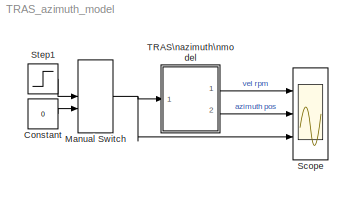
MODEL TRAS_azimuth_model
KIND model
CONFIG PreLoadFcn = load tras_char
BLOCK [Constant] Constant
  SID = 1
  Value = 0
BLOCK [ManualSwitch] Manual Switch
  SID = 2
BLOCK [Scope] Scope
  DataFormat = StructureWithTime
  Floating = off
  NumInputPorts = 3
  Ports = [3]
  SID = 3
  SampleTime = 0
  ShowLegends = off
  YMax = 5~5~5
  YMin = -5~-5~-5
BLOCK [Step] Step1
  After = .2
  SID = 4
  SampleTime = 0
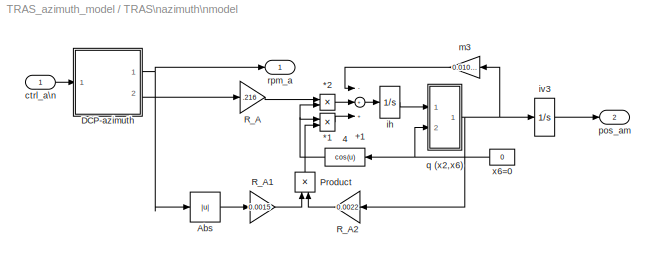
BLOCK [SubSystem] TRAS\nazimuth\nmodel
  FunctionWithSeparateData = off
  MaskHideContents = off
  MinAlgLoopOccurrences = off
  Opaque = off
  Ports = [1, 2]
  PropExecContextOutsideSubsystem = off
  RTWSystemCode = Auto
  RequestExecContextInheritance = off
  SID = 5
BLOCK [Product] TRAS\nazimuth\nmodel/*1
  Ports = [2, 1]
  RndMeth = Floor
  SID = 7
BLOCK [Product] TRAS\nazimuth\nmodel/*2
  Ports = [2, 1]
  RndMeth = Floor
  SID = 8
BLOCK [Sum] TRAS\nazimuth\nmodel/+1
  Inputs = -++
  Ports = [3, 1]
  SID = 9
BLOCK [Fcn] TRAS\nazimuth\nmodel/4
  Expr = cos(u)
  SID = 10
BLOCK [Abs] TRAS\nazimuth\nmodel/Abs
  SID = 11
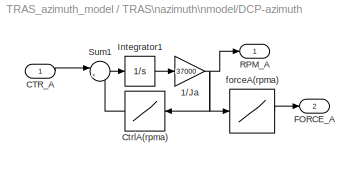
BLOCK [SubSystem] TRAS\nazimuth\nmodel/DCP-azimuth
  FunctionWithSeparateData = off
  MaskHideContents = off
  MinAlgLoopOccurrences = off
  Opaque = off
  Ports = [1, 2]
  PropExecContextOutsideSubsystem = off
  RTWSystemCode = Auto
  RequestExecContextInheritance = off
  SID = 12
BLOCK [Gain] TRAS\nazimuth\nmodel/DCP-azimuth/1//Ja
  Gain = 37000
  SID = 14
BLOCK [Inport] TRAS\nazimuth\nmodel/DCP-azimuth/CTR_A
  IconDisplay = Port number
  SID = 13
BLOCK [Lookup] TRAS\nazimuth\nmodel/DCP-azimuth/CtrlA(rpma)
  InputValues = rpm_a
  SID = 15
  Table = control_a
BLOCK [Outport] TRAS\nazimuth\nmodel/DCP-azimuth/FORCE_A
  IconDisplay = Port number
  Port = 2
  SID = 20
BLOCK [Integrator] TRAS\nazimuth\nmodel/DCP-azimuth/Integrator1
  Ports = [1, 1]
  SID = 16
BLOCK [Outport] TRAS\nazimuth\nmodel/DCP-azimuth/RPM_A
  IconDisplay = Port number
  SID = 19
BLOCK [Sum] TRAS\nazimuth\nmodel/DCP-azimuth/Sum1
  IconShape = round
  Inputs = |+-
  Ports = [2, 1]
  SID = 17
BLOCK [Lookup] TRAS\nazimuth\nmodel/DCP-azimuth/forceA(rpma)
  InputValues = rpm_a
  SID = 18
  Table = force_a
BLOCK [Product] TRAS\nazimuth\nmodel/Product
  Ports = [2, 1]
  RndMeth = Floor
  SID = 21
BLOCK [Gain] TRAS\nazimuth\nmodel/R_A
  Gain = .216
  SID = 22
  SaturateOnIntegerOverflow = off
BLOCK [Gain] TRAS\nazimuth\nmodel/R_A1
  Gain = 0.0015
  SID = 23
  SaturateOnIntegerOverflow = off
BLOCK [Gain] TRAS\nazimuth\nmodel/R_A2
  Gain = 0.0022
  SID = 24
  SaturateOnIntegerOverflow = off
BLOCK [Inport] TRAS\nazimuth\nmodel/ctrl_a\n
  IconDisplay = Port number
  SID = 6
BLOCK [Integrator] TRAS\nazimuth\nmodel/ih
  Ports = [1, 1]
  SID = 25
BLOCK [Integrator] TRAS\nazimuth\nmodel/iv3
  Ports = [1, 1]
  SID = 26
BLOCK [Gain] TRAS\nazimuth\nmodel/m3
  Gain = 0.0108*0.4935*1.1051
  SID = 27
  SaturateOnIntegerOverflow = off
BLOCK [Outport] TRAS\nazimuth\nmodel/pos_am
  IconDisplay = Port number
  Port = 2
  SID = 36
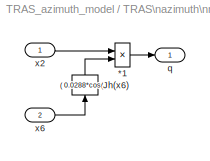
BLOCK [SubSystem] TRAS\nazimuth\nmodel/q (x2,x6)
  FunctionWithSeparateData = off
  MaskHideContents = off
  MinAlgLoopOccurrences = off
  Opaque = off
  Ports = [2, 1]
  PropExecContextOutsideSubsystem = off
  RTWSystemCode = Auto
  RequestExecContextInheritance = off
  SID = 28
BLOCK [Fcn] TRAS\nazimuth\nmodel/q (x2,x6)/ Jh(x6)
  Expr = ( 0.0288*cos(u)^2*0.8696)*1.0713  +0
  SID = 31
BLOCK [Product] TRAS\nazimuth\nmodel/q (x2,x6)/*1
  Inputs = */
  Ports = [2, 1]
  RndMeth = Floor
  SID = 32
BLOCK [Outport] TRAS\nazimuth\nmodel/q (x2,x6)/q
  IconDisplay = Port number
  SID = 33
BLOCK [Inport] TRAS\nazimuth\nmodel/q (x2,x6)/x2
  IconDisplay = Port number
  SID = 29
BLOCK [Inport] TRAS\nazimuth\nmodel/q (x2,x6)/x6
  IconDisplay = Port number
  Port = 2
  SID = 30
BLOCK [Outport] TRAS\nazimuth\nmodel/rpm_a
  IconDisplay = Port number
  SID = 35
BLOCK [Constant] TRAS\nazimuth\nmodel/x6=0
  SID = 34
  Value = 0
LINE Constant:1 -> Manual Switch:2
NET Manual Switch:1 -> Scope:3, TRAS\nazimuth\nmodel:1
LINE Step1:1 -> Manual Switch:1
LINE TRAS\nazimuth\nmodel/*1:1 -> TRAS\nazimuth\nmodel/+1:3
LINE TRAS\nazimuth\nmodel/*2:1 -> TRAS\nazimuth\nmodel/+1:2
LINE TRAS\nazimuth\nmodel/+1:1 -> TRAS\nazimuth\nmodel/ih:1
NET TRAS\nazimuth\nmodel/4:1 -> TRAS\nazimuth\nmodel/*1:1, TRAS\nazimuth\nmodel/*2:2
LINE TRAS\nazimuth\nmodel/Abs:1 -> TRAS\nazimuth\nmodel/R_A1:1
NET TRAS\nazimuth\nmodel/DCP-azimuth/1//Ja:1 -> TRAS\nazimuth\nmodel/DCP-azimuth/CtrlA(rpma):1, TRAS\nazimuth\nmodel/DCP-azimuth/RPM_A:1, TRAS\nazimuth\nmodel/DCP-azimuth/forceA(rpma):1
LINE TRAS\nazimuth\nmodel/DCP-azimuth/CTR_A:1 -> TRAS\nazimuth\nmodel/DCP-azimuth/Sum1:1
LINE TRAS\nazimuth\nmodel/DCP-azimuth/CtrlA(rpma):1 -> TRAS\nazimuth\nmodel/DCP-azimuth/Sum1:2
LINE TRAS\nazimuth\nmodel/DCP-azimuth/Integrator1:1 -> TRAS\nazimuth\nmodel/DCP-azimuth/1//Ja:1
LINE TRAS\nazimuth\nmodel/DCP-azimuth/Sum1:1 -> TRAS\nazimuth\nmodel/DCP-azimuth/Integrator1:1
LINE TRAS\nazimuth\nmodel/DCP-azimuth/forceA(rpma):1 -> TRAS\nazimuth\nmodel/DCP-azimuth/FORCE_A:1
NET TRAS\nazimuth\nmodel/DCP-azimuth:1 -> TRAS\nazimuth\nmodel/Abs:1, TRAS\nazimuth\nmodel/rpm_a:1
LINE TRAS\nazimuth\nmodel/DCP-azimuth:2 -> TRAS\nazimuth\nmodel/R_A:1
LINE TRAS\nazimuth\nmodel/Product:1 -> TRAS\nazimuth\nmodel/*1:2
LINE TRAS\nazimuth\nmodel/R_A1:1 -> TRAS\nazimuth\nmodel/Product:1
LINE TRAS\nazimuth\nmodel/R_A2:1 -> TRAS\nazimuth\nmodel/Product:2
LINE TRAS\nazimuth\nmodel/R_A:1 -> TRAS\nazimuth\nmodel/*2:1
LINE TRAS\nazimuth\nmodel/ctrl_a\n:1 -> TRAS\nazimuth\nmodel/DCP-azimuth:1
LINE TRAS\nazimuth\nmodel/ih:1 -> TRAS\nazimuth\nmodel/q (x2,x6):1
LINE TRAS\nazimuth\nmodel/iv3:1 -> TRAS\nazimuth\nmodel/pos_am:1
LINE TRAS\nazimuth\nmodel/m3:1 -> TRAS\nazimuth\nmodel/+1:1
LINE TRAS\nazimuth\nmodel/q (x2,x6)/ Jh(x6):1 -> TRAS\nazimuth\nmodel/q (x2,x6)/*1:2
LINE TRAS\nazimuth\nmodel/q (x2,x6)/*1:1 -> TRAS\nazimuth\nmodel/q (x2,x6)/q:1
LINE TRAS\nazimuth\nmodel/q (x2,x6)/x2:1 -> TRAS\nazimuth\nmodel/q (x2,x6)/*1:1
LINE TRAS\nazimuth\nmodel/q (x2,x6)/x6:1 -> TRAS\nazimuth\nmodel/q (x2,x6)/ Jh(x6):1
NET TRAS\nazimuth\nmodel/q (x2,x6):1 -> TRAS\nazimuth\nmodel/R_A2:1, TRAS\nazimuth\nmodel/iv3:1, TRAS\nazimuth\nmodel/m3:1
NET TRAS\nazimuth\nmodel/x6=0:1 -> TRAS\nazimuth\nmodel/4:1, TRAS\nazimuth\nmodel/q (x2,x6):2
LINE TRAS\nazimuth\nmodel:1 -> Scope:1
LINE TRAS\nazimuth\nmodel:2 -> Scope:2
note: NET lines group one-source signal fan-out (src -> all destinations, sorted); 1:1 wires keep LINE
